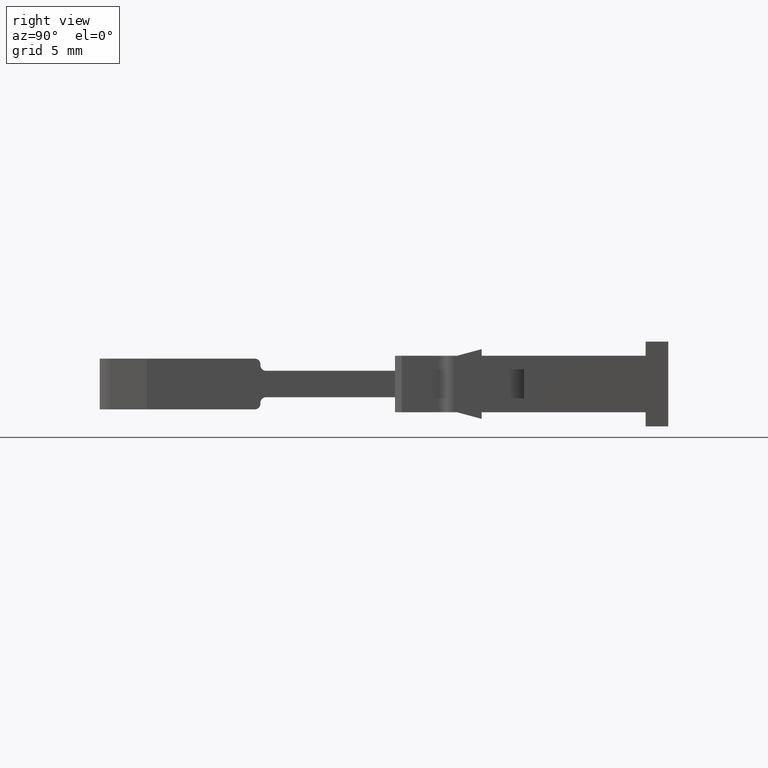
[diagram: clean part render]
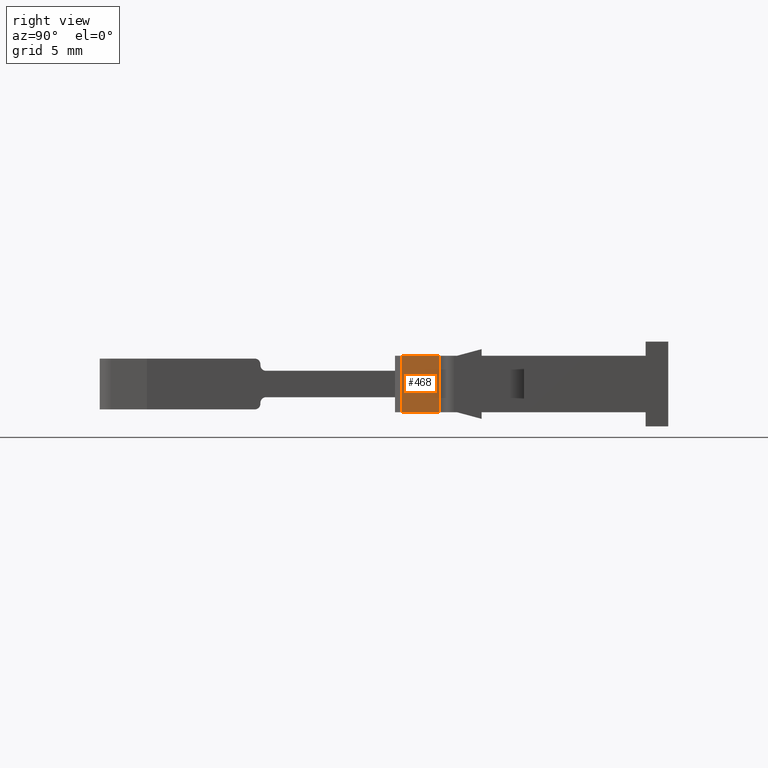
[diagram: same view with one face highlighted and labeled with its STEP entity id]
A machine part, right view. The second image highlights one B-rep face of the part: STEP entity #468.
In plain terms, the highlighted planar face has unit normal (-1, 0, 0).
Its self-contained STEP definition (entity closure, byte-faithful):
#5 = EDGE_CURVE ( 'NONE', #1500, #1545, #658, .T. ) ;
#65 = EDGE_CURVE ( 'NONE', #533, #507, #854, .T. ) ;
#273 = EDGE_CURVE ( 'NONE', #1545, #507, #1470, .T. ) ;
#297 = EDGE_CURVE ( 'NONE', #533, #1500, #3078, .T. ) ;
#468 = ADVANCED_FACE ( 'NONE', ( #2820 ), #2793, .F. ) ;
#507 = VERTEX_POINT ( 'NONE', #2875 ) ;
#533 = VERTEX_POINT ( 'NONE', #2852 ) ;
#638 = CARTESIAN_POINT ( 'NONE',  ( 1153.494474435155100, 661.9736492477802600, 3.000000000000000000 ) ) ;
#640 = DIRECTION ( 'NONE',  ( 0.0000000000000000000, 1.000000000000000000, -0.0000000000000000000 ) ) ;
#658 = LINE ( 'NONE', #638, #3548 ) ;
#813 = DIRECTION ( 'NONE',  ( -0.0000000000000000000, 1.000000000000000000, 0.0000000000000000000 ) ) ;
#854 = LINE ( 'NONE', #855, #3599 ) ;
#855 = CARTESIAN_POINT ( 'NONE',  ( 1153.494474435155100, 662.7578638201010800, 0.0000000000000000000 ) ) ;
#1454 = CARTESIAN_POINT ( 'NONE',  ( 1153.494474435155100, 661.9736492477802600, 3.000000000000000000 ) ) ;
#1470 = LINE ( 'NONE', #1454, #3858 ) ;
#1479 = DIRECTION ( 'NONE',  ( -0.0000000000000000000, -0.0000000000000000000, -1.000000000000000000 ) ) ;
#1500 = VERTEX_POINT ( 'NONE', #3017 ) ;
#1545 = VERTEX_POINT ( 'NONE', #3043 ) ;
#1595 = EDGE_LOOP ( 'NONE', ( #2233, #2290, #2334, #2338 ) ) ;
#2233 = ORIENTED_EDGE ( 'NONE', *, *, #273, .F. ) ;
#2290 = ORIENTED_EDGE ( 'NONE', *, *, #5, .F. ) ;
#2334 = ORIENTED_EDGE ( 'NONE', *, *, #297, .F. ) ;
#2338 = ORIENTED_EDGE ( 'NONE', *, *, #65, .T. ) ;
#2787 = DIRECTION ( 'NONE',  ( -1.000000000000000000, 0.0000000000000000000, 0.0000000000000000000 ) ) ;
#2793 = PLANE ( 'NONE',  #4086 ) ;
#2794 = DIRECTION ( 'NONE',  ( 0.0000000000000000000, 0.0000000000000000000, 1.000000000000000000 ) ) ;
#2818 = CARTESIAN_POINT ( 'NONE',  ( 1153.494474435155100, 661.9736492477802600, 3.000000000000000000 ) ) ;
#2820 = FACE_OUTER_BOUND ( 'NONE', #1595, .T. ) ;
#2852 = CARTESIAN_POINT ( 'NONE',  ( 1153.494474435155100, 659.9592804752735400, -5.782411586589356700E-016 ) ) ;
#2875 = CARTESIAN_POINT ( 'NONE',  ( 1153.494474435155100, 661.9736494821041800, 0.0000000000000000000 ) ) ;
#3017 = CARTESIAN_POINT ( 'NONE',  ( 1153.494474435155100, 659.9592804752735400, 3.000000000000000400 ) ) ;
#3043 = CARTESIAN_POINT ( 'NONE',  ( 1153.494474435155100, 661.9736494821041800, 3.000000000000000000 ) ) ;
#3078 = LINE ( 'NONE', #3127, #3921 ) ;
#3127 = CARTESIAN_POINT ( 'NONE',  ( 1153.494474435155100, 659.9592804752735400, 3.000000000000000000 ) ) ;
#3136 = DIRECTION ( 'NONE',  ( 0.0000000000000000000, 0.0000000000000000000, 1.000000000000000000 ) ) ;
#3548 = VECTOR ( 'NONE', #640, 1000.000000000000000 ) ;
#3599 = VECTOR ( 'NONE', #813, 1000.000000000000000 ) ;
#3858 = VECTOR ( 'NONE', #1479, 1000.000000000000000 ) ;
#3921 = VECTOR ( 'NONE', #3136, 1000.000000000000000 ) ;
#4086 = AXIS2_PLACEMENT_3D ( 'NONE', #2818, #2787, #2794 ) ;